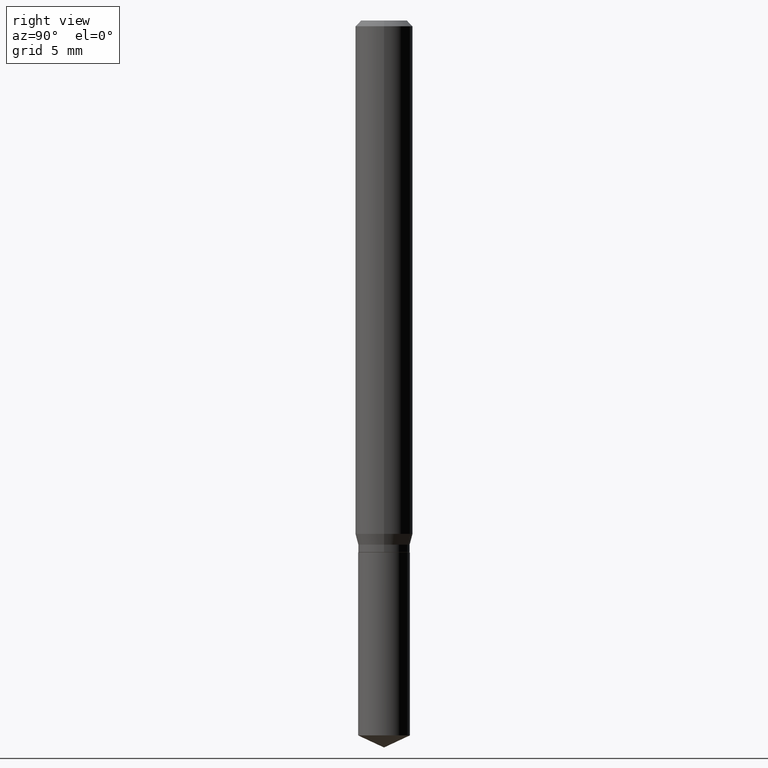
[diagram: clean part render]
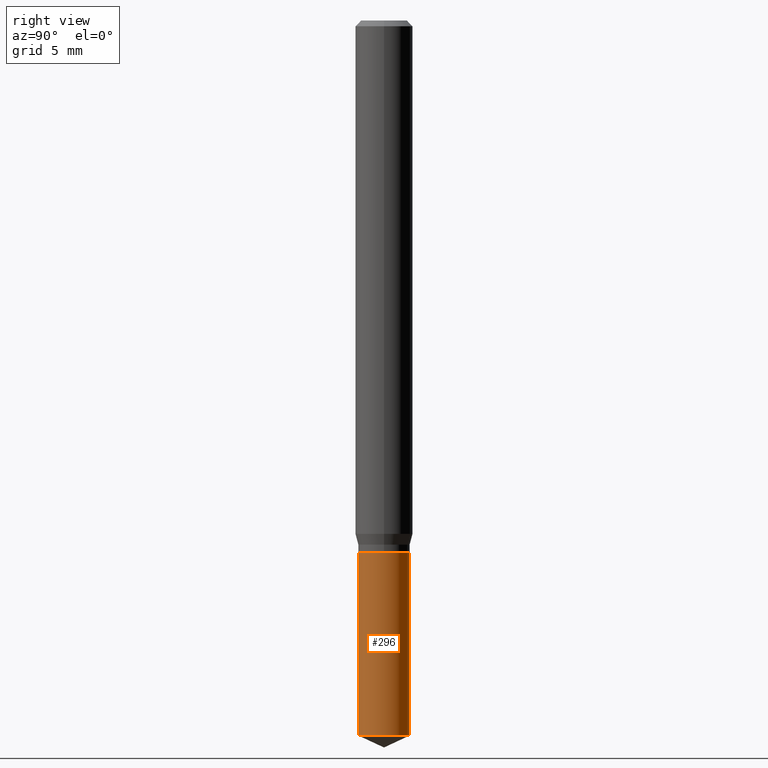
[diagram: same view with one face highlighted and labeled with its STEP entity id]
A machine part, right view. The second image highlights one B-rep face of the part: STEP entity #296.
In plain terms, the highlighted cylindrical surface (edge-blend (fillet) strip) has radius 1.35 mm, axis along (-0, 0, 1).
Its self-contained STEP definition (entity closure, byte-faithful):
#22 = VERTEX_POINT ( 'NONE', #228 ) ;
#35 = CARTESIAN_POINT ( 'NONE',  ( 3.776534640565199420E-16, 0.05314999999999617947, -1.094500000000000028 ) ) ;
#69 = CIRCLE ( 'NONE', #384, 0.05315000000000000280 ) ;
#73 = CARTESIAN_POINT ( 'NONE',  ( 3.598053032648563505E-29, -5.137076823532599623E-15, -1.471315747969061949 ) ) ;
#79 = CARTESIAN_POINT ( 'NONE',  ( 3.776534640565292111E-16, 0.05314999999999617947, -1.094500000000000028 ) ) ;
#106 = ORIENTED_EDGE ( 'NONE', *, *, #311, .T. ) ;
#109 = EDGE_LOOP ( 'NONE', ( #258, #106, #458, #378 ) ) ;
#112 = VERTEX_POINT ( 'NONE', #144 ) ;
#114 = CARTESIAN_POINT ( 'NONE',  ( -3.711444663189982974E-16, -0.05315000000000382613, -1.094499999999999806 ) ) ;
#124 = AXIS2_PLACEMENT_3D ( 'NONE', #469, #248, #216 ) ;
#131 = VERTEX_POINT ( 'NONE', #252 ) ;
#144 = CARTESIAN_POINT ( 'NONE',  ( 3.776534640565292111E-16, 0.05314999999999486802, -1.471315747969062171 ) ) ;
#149 = DIRECTION ( 'NONE',  ( -6.982962677686265922E-15, -1.000000000000000000, 5.139883337091746339E-15 ) ) ;
#154 = CARTESIAN_POINT ( 'NONE',  ( 2.676565608369631794E-29, -3.821426325363822773E-15, -1.094499999999999806 ) ) ;
#181 = VECTOR ( 'NONE', #486, 39.37007874015748143 ) ;
#212 = CYLINDRICAL_SURFACE ( 'NONE', #124, 0.05315000000000000280 ) ;
#216 = DIRECTION ( 'NONE',  ( -6.982962677686265922E-15, -1.000000000000000000, 2.569941668545873170E-15 ) ) ;
#219 = LINE ( 'NONE', #35, #181 ) ;
#228 = CARTESIAN_POINT ( 'NONE',  ( -3.711444663189982974E-16, -0.05315000000000382613, -1.094499999999999806 ) ) ;
#229 = DIRECTION ( 'NONE',  ( -2.445458899330790108E-29, 3.491495526022433205E-15, 1.000000000000000000 ) ) ;
#246 = FACE_OUTER_BOUND ( 'NONE', #109, .T. ) ;
#248 = DIRECTION ( 'NONE',  ( -2.445458899330790108E-29, 3.491495526022433205E-15, 1.000000000000000000 ) ) ;
#252 = CARTESIAN_POINT ( 'NONE',  ( -3.711444663189891269E-16, -0.05315000000000515146, -1.471315747969061727 ) ) ;
#253 = VERTEX_POINT ( 'NONE', #79 ) ;
#258 = ORIENTED_EDGE ( 'NONE', *, *, #467, .T. ) ;
#296 = ADVANCED_FACE ( 'NONE', ( #246 ), #212, .T. ) ;
#311 = EDGE_CURVE ( 'NONE', #112, #253, #219, .T. ) ;
#340 = LINE ( 'NONE', #114, #452 ) ;
#378 = ORIENTED_EDGE ( 'NONE', *, *, #445, .F. ) ;
#384 = AXIS2_PLACEMENT_3D ( 'NONE', #154, #229, #483 ) ;
#408 = AXIS2_PLACEMENT_3D ( 'NONE', #73, #490, #149 ) ;
#433 = EDGE_CURVE ( 'NONE', #22, #253, #69, .T. ) ;
#442 = CIRCLE ( 'NONE', #408, 0.05315000000000000280 ) ;
#445 = EDGE_CURVE ( 'NONE', #131, #22, #340, .T. ) ;
#452 = VECTOR ( 'NONE', #487, 39.37007874015748143 ) ;
#458 = ORIENTED_EDGE ( 'NONE', *, *, #433, .F. ) ;
#467 = EDGE_CURVE ( 'NONE', #131, #112, #442, .T. ) ;
#469 = CARTESIAN_POINT ( 'NONE',  ( 2.676565608369631794E-29, -3.821426325363822773E-15, -1.094499999999999806 ) ) ;
#483 = DIRECTION ( 'NONE',  ( -6.982962677686265922E-15, -1.000000000000000000, 2.569941668545873170E-15 ) ) ;
#486 = DIRECTION ( 'NONE',  ( -2.445458899330790108E-29, 3.491495526022433599E-15, 1.000000000000000000 ) ) ;
#487 = DIRECTION ( 'NONE',  ( -2.445458899330790108E-29, 3.491495526022433599E-15, 1.000000000000000000 ) ) ;
#490 = DIRECTION ( 'NONE',  ( -2.445458899330790108E-29, 3.491495526022433205E-15, 1.000000000000000000 ) ) ;